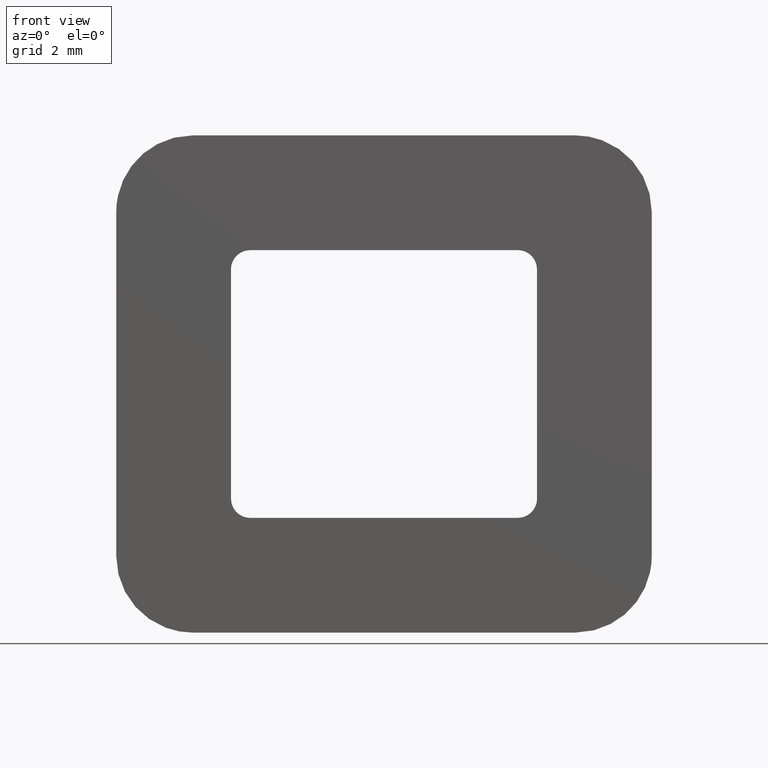
[diagram: clean part render]
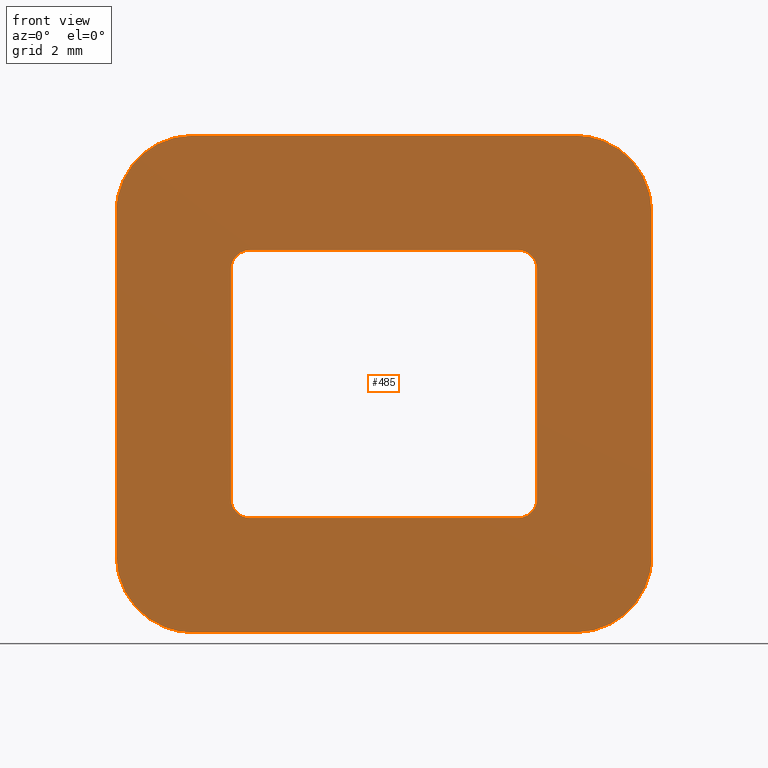
[diagram: same view with one face highlighted and labeled with its STEP entity id]
A machine part, front view. The second image highlights one B-rep face of the part: STEP entity #485.
In plain terms, the highlighted face is a freeform B-spline surface patch.
Its self-contained STEP definition (entity closure, byte-faithful):
#49=CARTESIAN_POINT('',(3.499999973820085,0.0,3.500000000000000));
#50=VERTEX_POINT('',#49);
#51=CARTESIAN_POINT('',(-3.500000000000000,0.0,3.500000000000000));
#52=VERTEX_POINT('',#51);
#53=CARTESIAN_POINT('',(3.499999973820085,0.0,3.500000000000000));
#54=CARTESIAN_POINT('',(-3.500000000000000,0.0,3.500000000000000));
#55=QUASI_UNIFORM_CURVE('',1,(#53,#54),.UNSPECIFIED.,.F.,.U.);
#56=EDGE_CURVE('',#50,#52,#55,.T.);
#94=CARTESIAN_POINT('',(4.0,0.0,3.0));
#95=VERTEX_POINT('',#94);
#96=CARTESIAN_POINT('',(4.0,0.0,3.0));
#97=CARTESIAN_POINT('',(4.000000000000001,0.0,3.207106788854468));
#98=CARTESIAN_POINT('',(3.853553381337276,0.0,3.353553399849271));
#99=CARTESIAN_POINT('',(3.707106762674552,0.0,3.500000010844076));
#100=CARTESIAN_POINT('',(3.499999973820085,0.0,3.500000000000000));
#108=(BOUNDED_CURVE()B_SPLINE_CURVE(2,(#96,#97,#98,#99,#100),.UNSPECIFIED.,.F.,.U.)B_SPLINE_CURVE_WITH_KNOTS((3,2,3),(0.0,0.500000000000000,1.0),.UNSPECIFIED.)CURVE()GEOMETRIC_REPRESENTATION_ITEM()RATIONAL_B_SPLINE_CURVE((1.0,0.923879527501977,1.0,0.923879527501977,1.0))REPRESENTATION_ITEM(''));
#109=EDGE_CURVE('',#95,#50,#108,.T.);
#142=CARTESIAN_POINT('',(4.0,0.0,-3.0));
#143=VERTEX_POINT('',#142);
#144=CARTESIAN_POINT('',(4.0,0.0,-3.0));
#145=CARTESIAN_POINT('',(4.0,0.0,3.0));
#146=QUASI_UNIFORM_CURVE('',1,(#144,#145),.UNSPECIFIED.,.F.,.U.);
#147=EDGE_CURVE('',#143,#95,#146,.T.);
#179=CARTESIAN_POINT('',(3.500000000000000,0.0,-3.500000000000000));
#180=VERTEX_POINT('',#179);
#181=CARTESIAN_POINT('',(3.500000000000000,0.0,-3.500000000000000));
#182=CARTESIAN_POINT('',(4.000000000000000,0.0,-3.499999999999999));
#183=CARTESIAN_POINT('',(4.0,0.0,-3.0));
#191=(BOUNDED_CURVE()B_SPLINE_CURVE(2,(#181,#182,#183),.UNSPECIFIED.,.F.,.U.)CURVE()GEOMETRIC_REPRESENTATION_ITEM()QUASI_UNIFORM_CURVE()RATIONAL_B_SPLINE_CURVE((1.0,0.707106781186548,1.0))REPRESENTATION_ITEM(''));
#192=EDGE_CURVE('',#180,#143,#191,.T.);
#223=CARTESIAN_POINT('',(-3.499999991273340,0.0,-3.500000000000000));
#224=VERTEX_POINT('',#223);
#225=CARTESIAN_POINT('',(-3.499999991273340,0.0,-3.500000000000000));
#226=CARTESIAN_POINT('',(3.500000000000000,0.0,-3.500000000000000));
#227=QUASI_UNIFORM_CURVE('',1,(#225,#226),.UNSPECIFIED.,.F.,.U.);
#228=EDGE_CURVE('',#224,#180,#227,.T.);
#260=CARTESIAN_POINT('',(-4.0,0.0,-3.0));
#261=VERTEX_POINT('',#260);
#262=CARTESIAN_POINT('',(-4.0,0.0,-3.0));
#263=CARTESIAN_POINT('',(-4.0,0.0,-3.207106783742527));
#264=CARTESIAN_POINT('',(-3.853553387507934,0.0,-3.353553393678614));
#265=CARTESIAN_POINT('',(-3.707106775015868,0.0,-3.500000003614701));
#266=CARTESIAN_POINT('',(-3.499999991273340,0.0,-3.500000000000000));
#274=(BOUNDED_CURVE()B_SPLINE_CURVE(2,(#262,#263,#264,#265,#266),.UNSPECIFIED.,.F.,.U.)B_SPLINE_CURVE_WITH_KNOTS((3,2,3),(0.0,0.500000000000000,1.0),.UNSPECIFIED.)CURVE()GEOMETRIC_REPRESENTATION_ITEM()RATIONAL_B_SPLINE_CURVE((1.0,0.923879530841513,1.0,0.923879530841513,1.0))REPRESENTATION_ITEM(''));
#275=EDGE_CURVE('',#261,#224,#274,.T.);
#308=CARTESIAN_POINT('',(-4.0,0.0,3.0));
#309=VERTEX_POINT('',#308);
#310=CARTESIAN_POINT('',(-4.0,0.0,3.0));
#311=CARTESIAN_POINT('',(-4.0,0.0,-3.0));
#312=QUASI_UNIFORM_CURVE('',1,(#310,#311),.UNSPECIFIED.,.F.,.U.);
#313=EDGE_CURVE('',#309,#261,#312,.T.);
#345=CARTESIAN_POINT('',(-3.500000000000000,0.0,3.500000000000000));
#346=CARTESIAN_POINT('',(-4.000000000000000,0.0,3.499999999999999));
#347=CARTESIAN_POINT('',(-4.0,0.0,3.0));
#355=(BOUNDED_CURVE()B_SPLINE_CURVE(2,(#345,#346,#347),.UNSPECIFIED.,.F.,.U.)CURVE()GEOMETRIC_REPRESENTATION_ITEM()QUASI_UNIFORM_CURVE()RATIONAL_B_SPLINE_CURVE((1.0,0.707106781186548,1.0))REPRESENTATION_ITEM(''));
#356=EDGE_CURVE('',#52,#309,#355,.T.);
#376=CARTESIAN_POINT('',(-7.699299972865286,0.0,7.149349974803479));
#377=CARTESIAN_POINT('',(7.699300348374547,0.0,7.149349974803479));
#378=CARTESIAN_POINT('',(-7.699299972865286,0.0,-7.149350323490651));
#379=CARTESIAN_POINT('',(7.699300348374547,0.0,-7.149350323490651));
#380=B_SPLINE_SURFACE_WITH_KNOTS('',1,1,((#376,#378),(#377,#379)),.UNSPECIFIED.,.F.,.F.,.U.,(2,2),(2,2),(0.0,15.398600321239829),(0.0,14.298700298294129),.UNSPECIFIED.);
#381=CARTESIAN_POINT('',(-5.0,0.0,6.500000000000000));
#382=VERTEX_POINT('',#381);
#383=CARTESIAN_POINT('',(-7.0,0.0,4.500000000000000));
#384=VERTEX_POINT('',#383);
#385=CARTESIAN_POINT('',(-5.0,0.0,6.500000000000000));
#386=CARTESIAN_POINT('',(-6.999999999999999,0.0,6.500000000000001));
#387=CARTESIAN_POINT('',(-7.0,0.0,4.500000000000000));
#395=(BOUNDED_CURVE()B_SPLINE_CURVE(2,(#385,#386,#387),.UNSPECIFIED.,.F.,.U.)CURVE()GEOMETRIC_REPRESENTATION_ITEM()QUASI_UNIFORM_CURVE()RATIONAL_B_SPLINE_CURVE((1.0,0.707106781186548,1.0))REPRESENTATION_ITEM(''));
#396=EDGE_CURVE('',#382,#384,#395,.T.);
#397=ORIENTED_EDGE('',*,*,#396,.T.);
#398=CARTESIAN_POINT('',(-7.0,0.0,-4.500000000000000));
#399=VERTEX_POINT('',#398);
#400=CARTESIAN_POINT('',(-7.0,0.0,4.500000000000000));
#401=CARTESIAN_POINT('',(-7.0,0.0,-4.500000000000000));
#402=QUASI_UNIFORM_CURVE('',1,(#400,#401),.UNSPECIFIED.,.F.,.U.);
#403=EDGE_CURVE('',#384,#399,#402,.T.);
#404=ORIENTED_EDGE('',*,*,#403,.T.);
#405=CARTESIAN_POINT('',(-4.999999965093400,0.0,-6.500000000000000));
#406=VERTEX_POINT('',#405);
#407=CARTESIAN_POINT('',(-7.0,0.0,-4.500000000000000));
#408=CARTESIAN_POINT('',(-7.0,0.0,-5.328427134970096));
#409=CARTESIAN_POINT('',(-6.414213550031748,0.0,-5.914213574714442));
#410=CARTESIAN_POINT('',(-5.828427100063497,0.0,-6.500000014458787));
#411=CARTESIAN_POINT('',(-4.999999965093400,0.0,-6.499999999999999));
#419=(BOUNDED_CURVE()B_SPLINE_CURVE(2,(#407,#408,#409,#410,#411),.UNSPECIFIED.,.F.,.U.)B_SPLINE_CURVE_WITH_KNOTS((3,2,3),(0.0,0.500000000000000,1.0),.UNSPECIFIED.)CURVE()GEOMETRIC_REPRESENTATION_ITEM()RATIONAL_B_SPLINE_CURVE((1.0,0.923879530841515,1.0,0.923879530841515,1.0))REPRESENTATION_ITEM(''));
#420=EDGE_CURVE('',#399,#406,#419,.T.);
#421=ORIENTED_EDGE('',*,*,#420,.T.);
#422=CARTESIAN_POINT('',(5.0,0.0,-6.500000000000000));
#423=VERTEX_POINT('',#422);
#424=CARTESIAN_POINT('',(-4.999999965093400,0.0,-6.500000000000000));
#425=CARTESIAN_POINT('',(5.0,0.0,-6.500000000000000));
#426=QUASI_UNIFORM_CURVE('',1,(#424,#425),.UNSPECIFIED.,.F.,.U.);
#427=EDGE_CURVE('',#406,#423,#426,.T.);
#428=ORIENTED_EDGE('',*,*,#427,.T.);
#429=CARTESIAN_POINT('',(7.0,0.0,-4.500000000000000));
#430=VERTEX_POINT('',#429);
#431=CARTESIAN_POINT('',(5.0,0.0,-6.500000000000000));
#432=CARTESIAN_POINT('',(6.999999999999999,0.0,-6.500000000000001));
#433=CARTESIAN_POINT('',(7.0,0.0,-4.500000000000000));
#441=(BOUNDED_CURVE()B_SPLINE_CURVE(2,(#431,#432,#433),.UNSPECIFIED.,.F.,.U.)CURVE()GEOMETRIC_REPRESENTATION_ITEM()QUASI_UNIFORM_CURVE()RATIONAL_B_SPLINE_CURVE((1.0,0.707106781186548,1.0))REPRESENTATION_ITEM(''));
#442=EDGE_CURVE('',#423,#430,#441,.T.);
#443=ORIENTED_EDGE('',*,*,#442,.T.);
#444=CARTESIAN_POINT('',(7.0,0.0,4.500000000000000));
#445=VERTEX_POINT('',#444);
#446=CARTESIAN_POINT('',(7.0,0.0,-4.500000000000000));
#447=CARTESIAN_POINT('',(7.0,0.0,4.500000000000000));
#448=QUASI_UNIFORM_CURVE('',1,(#446,#447),.UNSPECIFIED.,.F.,.U.);
#449=EDGE_CURVE('',#430,#445,#448,.T.);
#450=ORIENTED_EDGE('',*,*,#449,.T.);
#451=CARTESIAN_POINT('',(4.999999895280270,0.0,6.500000000000000));
#452=VERTEX_POINT('',#451);
#453=CARTESIAN_POINT('',(7.0,0.0,4.500000000000000));
#454=CARTESIAN_POINT('',(7.000000000000001,0.0,5.328427155417889));
#455=CARTESIAN_POINT('',(6.414213525349081,0.0,5.914213599397109));
#456=CARTESIAN_POINT('',(5.828427050698159,0.0,6.500000043376331));
#457=CARTESIAN_POINT('',(4.999999895280271,0.0,6.499999999999997));
#465=(BOUNDED_CURVE()B_SPLINE_CURVE(2,(#453,#454,#455,#456,#457),.UNSPECIFIED.,.F.,.U.)B_SPLINE_CURVE_WITH_KNOTS((3,2,3),(0.0,0.500000000000000,1.0),.UNSPECIFIED.)CURVE()GEOMETRIC_REPRESENTATION_ITEM()RATIONAL_B_SPLINE_CURVE((1.0,0.923879527501974,1.0,0.923879527501974,1.0))REPRESENTATION_ITEM(''));
#466=EDGE_CURVE('',#445,#452,#465,.T.);
#467=ORIENTED_EDGE('',*,*,#466,.T.);
#468=CARTESIAN_POINT('',(4.999999895280270,0.0,6.500000000000000));
#469=CARTESIAN_POINT('',(-5.0,0.0,6.500000000000000));
#470=QUASI_UNIFORM_CURVE('',1,(#468,#469),.UNSPECIFIED.,.F.,.U.);
#471=EDGE_CURVE('',#452,#382,#470,.T.);
#472=ORIENTED_EDGE('',*,*,#471,.T.);
#473=EDGE_LOOP('',(#397,#404,#421,#428,#443,#450,#467,#472));
#474=FACE_OUTER_BOUND('',#473,.T.);
#475=ORIENTED_EDGE('',*,*,#356,.F.);
#476=ORIENTED_EDGE('',*,*,#56,.F.);
#477=ORIENTED_EDGE('',*,*,#109,.F.);
#478=ORIENTED_EDGE('',*,*,#147,.F.);
#479=ORIENTED_EDGE('',*,*,#192,.F.);
#480=ORIENTED_EDGE('',*,*,#228,.F.);
#481=ORIENTED_EDGE('',*,*,#275,.F.);
#482=ORIENTED_EDGE('',*,*,#313,.F.);
#483=EDGE_LOOP('',(#475,#476,#477,#478,#479,#480,#481,#482));
#484=FACE_BOUND('',#483,.T.);
#485=ADVANCED_FACE('',(#474,#484),#380,.F.);